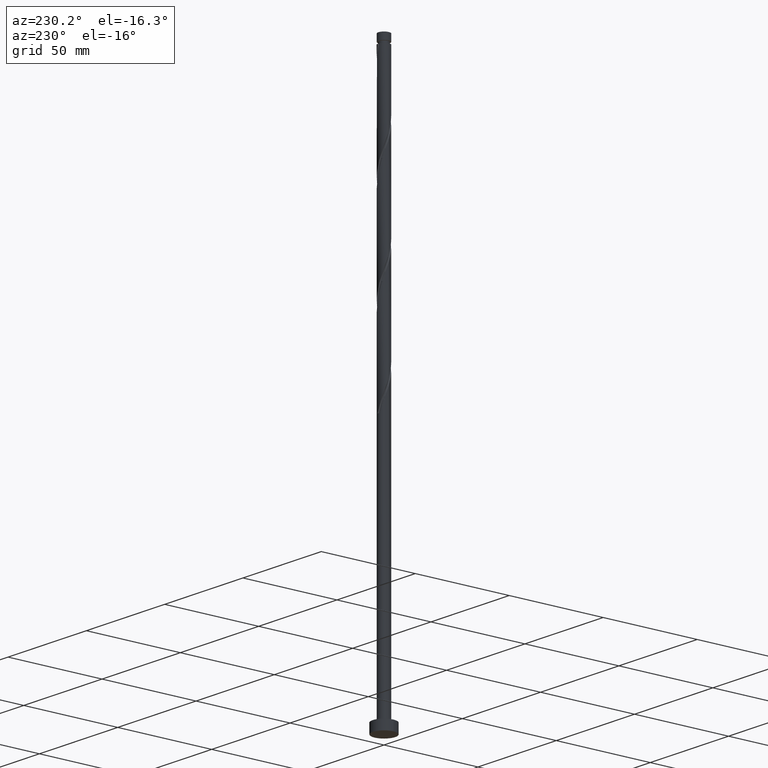
[diagram: clean part render]
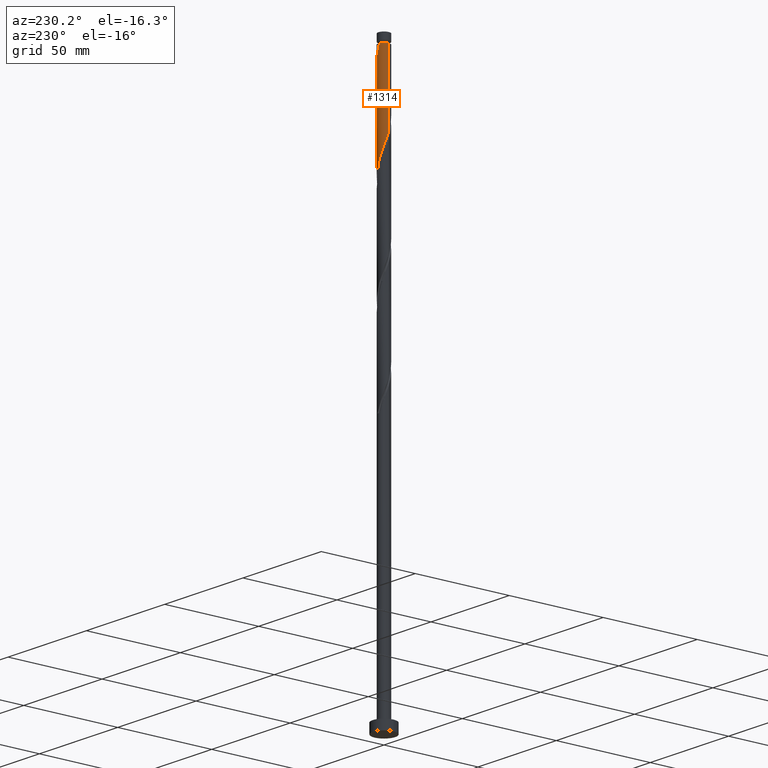
[diagram: same view with one face highlighted and labeled with its STEP entity id]
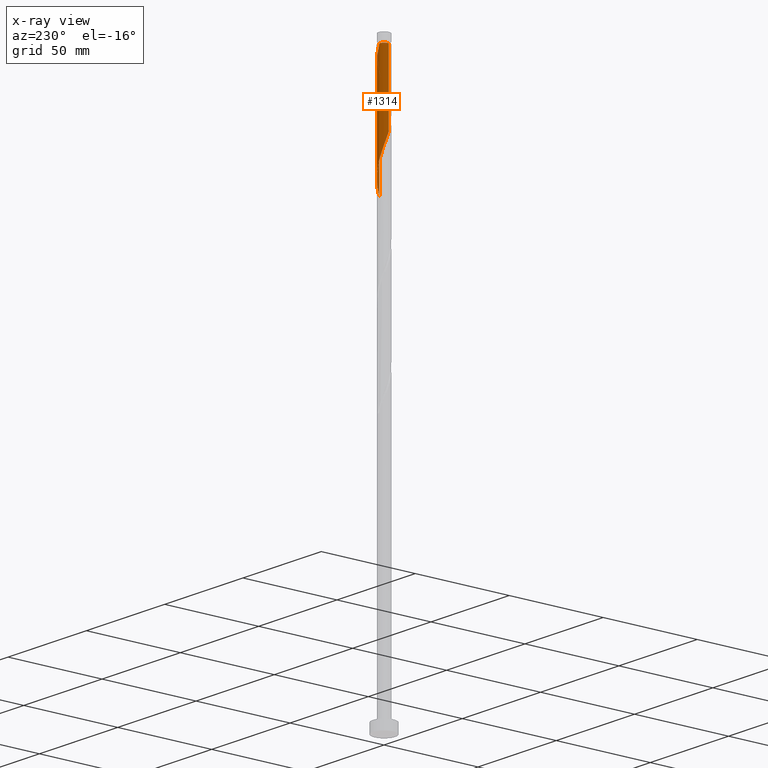
[diagram: x-ray of the same camera — body ghosted, the highlighted face saturated]
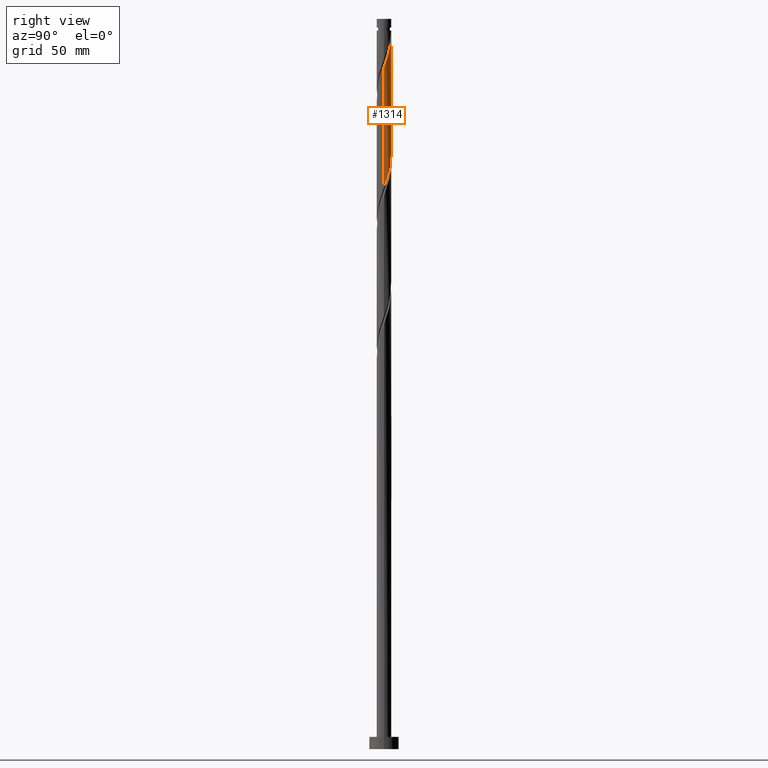
[diagram: same view with one face highlighted and labeled with its STEP entity id]
A machine part, auxiliary view. The second image highlights one B-rep face of the part: STEP entity #1314.
The next image is the same camera in x-ray: the body ghosted, the highlighted face saturated — about 0% of this face is hidden behind the body in this view.
A second angle (right view) of the same face is appended — the face is thin or edge-on in the first view.
In plain terms, the highlighted cylindrical surface (edge-blend (fillet) strip) has radius 3 mm, axis along (-0, -0, -1).
Its self-contained STEP definition (entity closure, byte-faithful):
#3 = CARTESIAN_POINT ( 'NONE',  ( 1.065385259292572329, 2.824749718427055800, 289.0194267578456788 ) ) ;
#78 = AXIS2_PLACEMENT_3D ( 'NONE', #1035, #1309, #1184 ) ;
#99 = CARTESIAN_POINT ( 'NONE',  ( -2.872735104178511190, 0.9282509055703006551, 253.3944267578456220 ) ) ;
#111 = CARTESIAN_POINT ( 'NONE',  ( -0.07218693100826180375, 2.999131382082419250, 243.0819267578455651 ) ) ;
#124 = CARTESIAN_POINT ( 'NONE',  ( -2.999999999999999556, -2.585890262604387055E-15, 256.0064438357516678 ) ) ;
#143 = EDGE_CURVE ( 'NONE', #190, #867, #1135, .T. ) ;
#155 = CARTESIAN_POINT ( 'NONE',  ( 1.667239772048622948, 2.516856822501210900, 287.1444267578456220 ) ) ;
#175 = CARTESIAN_POINT ( 'NONE',  ( 3.000000000000004885, 4.141902152223447771E-16, 278.9074096799394624 ) ) ;
#190 = VERTEX_POINT ( 'NONE', #614 ) ;
#202 = CARTESIAN_POINT ( 'NONE',  ( -3.000000000000000444, 0.000000000000000000, 298.5000000000000000 ) ) ;
#229 = CARTESIAN_POINT ( 'NONE',  ( -3.000000000000000888, 0.3015113445777614642, 255.1681727567880102 ) ) ;
#238 = CARTESIAN_POINT ( 'NONE',  ( 0.9282509055703014322, 2.872735104178511190, 240.2694267578456220 ) ) ;
#262 = CARTESIAN_POINT ( 'NONE',  ( -1.065385259292568998, 2.824749718427052692, 245.8944267578455936 ) ) ;
#275 = CARTESIAN_POINT ( 'NONE',  ( 1.236236160654866634, 2.733444741546700918, 239.3319267578455651 ) ) ;
#292 = EDGE_CURVE ( 'NONE', #431, #867, #1699, .T. ) ;
#331 = CARTESIAN_POINT ( 'NONE',  ( 0.07218693100826324704, 2.999131382082423247, 291.8319267578455083 ) ) ;
#340 = CARTESIAN_POINT ( 'NONE',  ( 3.000000000000005773, 0.3015113445777610202, 279.7456807589032337 ) ) ;
#358 = CARTESIAN_POINT ( 'NONE',  ( 2.516856822501208235, 1.667239772048618507, 234.6444267578456788 ) ) ;
#403 = EDGE_CURVE ( 'NONE', #993, #431, #1675, .T. ) ;
#411 = CARTESIAN_POINT ( 'NONE',  ( -2.594154378914891090, 1.544221415739432945, 251.5194267578456788 ) ) ;
#431 = VERTEX_POINT ( 'NONE', #1488 ) ;
#474 = CARTESIAN_POINT ( 'NONE',  ( 2.299807519258759481, 1.926365846447883667, 235.5819267578455936 ) ) ;
#506 = CARTESIAN_POINT ( 'NONE',  ( 2.999999999999999112, -2.388123763444167062E-15, 229.7564438357516678 ) ) ;
#527 = AXIS2_PLACEMENT_3D ( 'NONE', #1330, #1444, #734 ) ;
#541 = CARTESIAN_POINT ( 'NONE',  ( -0.4101078809741713904, 2.990997868343352906, 244.0194267578456220 ) ) ;
#561 = CARTESIAN_POINT ( 'NONE',  ( -2.733444741546700918, 1.236236160654866634, 252.4569267578455936 ) ) ;
#574 = ORIENTED_EDGE ( 'NONE', *, *, #1241, .T. ) ;
#610 = CARTESIAN_POINT ( 'NONE',  ( 2.733444741546706247, 1.236236160654867300, 282.4569267578455651 ) ) ;
#614 = CARTESIAN_POINT ( 'NONE',  ( 3.000000000000004441, 4.141902152223447771E-16, 278.9074096799394624 ) ) ;
#648 = CARTESIAN_POINT ( 'NONE',  ( 2.999131382082418806, 0.07218693100826127640, 229.9569267578456220 ) ) ;
#722 = CARTESIAN_POINT ( 'NONE',  ( 0.2657340189576477552, 3.007264895821487372, 242.1444267578455651 ) ) ;
#732 = CARTESIAN_POINT ( 'NONE',  ( 1.544221415739433390, 2.594154378914891090, 238.3944267578455936 ) ) ;
#734 = DIRECTION ( 'NONE',  ( -1.000000000000000000, 0.000000000000000000, 0.000000000000000000 ) ) ;
#741 = VECTOR ( 'NONE', #967, 1000.000000000000000 ) ;
#774 = CARTESIAN_POINT ( 'NONE',  ( 2.990997868343352906, 0.4101078809741707798, 230.8944267578456220 ) ) ;
#785 = ORIENTED_EDGE ( 'NONE', *, *, #143, .T. ) ;
#790 = ORIENTED_EDGE ( 'NONE', *, *, #403, .F. ) ;
#795 = CARTESIAN_POINT ( 'NONE',  ( -0.5969924622640133682, 2.940000000000002611, 293.7069267578457925 ) ) ;
#827 = CARTESIAN_POINT ( 'NONE',  ( -1.926365846447884556, 2.299807519258758592, 248.7069267578456504 ) ) ;
#863 = VECTOR ( 'NONE', #1805, 1000.000000000000000 ) ;
#867 = VERTEX_POINT ( 'NONE', #1342 ) ;
#925 = CARTESIAN_POINT ( 'NONE',  ( 2.907873793385202355, 0.7377465701333695280, 231.8319267578456220 ) ) ;
#967 = DIRECTION ( 'NONE',  ( -0.000000000000000000, -0.000000000000000000, -1.000000000000000000 ) ) ;
#975 = CARTESIAN_POINT ( 'NONE',  ( 2.082758216016309838, 2.185491920847149494, 236.5194267578455936 ) ) ;
#993 = VERTEX_POINT ( 'NONE', #1898 ) ;
#999 = CARTESIAN_POINT ( 'NONE',  ( -1.366312515670593752, 2.670803270464129131, 246.8319267578455936 ) ) ;
#1035 = CARTESIAN_POINT ( 'NONE',  ( 0.000000000000000000, 0.000000000000000000, 298.5000000000000000 ) ) ;
#1056 = CARTESIAN_POINT ( 'NONE',  ( 2.594154378914897308, 1.544221415739434500, 283.3944267578456220 ) ) ;
#1066 = CARTESIAN_POINT ( 'NONE',  ( 2.185491920847153935, 2.082758216016312502, 285.2694267578456788 ) ) ;
#1094 = CARTESIAN_POINT ( 'NONE',  ( -0.5969924622640133682, 2.940000000000002611, 293.7069267578457925 ) ) ;
#1125 = CARTESIAN_POINT ( 'NONE',  ( 1.813489815877871614, 2.389823149881020292, 237.4569267578455651 ) ) ;
#1135 = LINE ( 'NONE', #1161, #741 ) ;
#1147 = CARTESIAN_POINT ( 'NONE',  ( -1.667239772048618951, 2.516856822501208235, 247.7694267578456220 ) ) ;
#1161 = CARTESIAN_POINT ( 'NONE',  ( 3.000000000000000444, 3.673940397442059868E-16, 298.5000000000000000 ) ) ;
#1184 = DIRECTION ( 'NONE',  ( -1.000000000000000000, 0.000000000000000000, 0.000000000000000000 ) ) ;
#1241 = EDGE_CURVE ( 'NONE', #993, #1635, #1758, .T. ) ;
#1249 = ORIENTED_EDGE ( 'NONE', *, *, #1470, .F. ) ;
#1309 = DIRECTION ( 'NONE',  ( -0.000000000000000000, -0.000000000000000000, -1.000000000000000000 ) ) ;
#1314 = ADVANCED_FACE ( 'NONE', ( #1911 ), #1456, .T. ) ;
#1330 = CARTESIAN_POINT ( 'NONE',  ( 0.000000000000000000, 0.000000000000000000, 293.7069267578456220 ) ) ;
#1341 = CARTESIAN_POINT ( 'NONE',  ( 1.366312515670597305, 2.670803270464133572, 288.0819267578456220 ) ) ;
#1342 = CARTESIAN_POINT ( 'NONE',  ( 2.999999999999999556, -2.388123763444167062E-15, 229.7564438357516678 ) ) ;
#1357 = CARTESIAN_POINT ( 'NONE',  ( 0.4101078809741733888, 2.990997868343357791, 290.8944267578456788 ) ) ;
#1365 = CARTESIAN_POINT ( 'NONE',  ( 2.999999999999999112, 0.03609869149916482278, 229.8568065239767577 ) ) ;
#1370 = CARTESIAN_POINT ( 'NONE',  ( 1.926365846447887886, 2.299807519258761701, 286.2069267578456788 ) ) ;
#1434 = CARTESIAN_POINT ( 'NONE',  ( -2.939999999999999503, 0.5969924622639743994, 254.3319267578455367 ) ) ;
#1442 = CARTESIAN_POINT ( 'NONE',  ( -0.7377465701333703052, 2.907873793385202355, 244.9569267578455651 ) ) ;
#1444 = DIRECTION ( 'NONE',  ( -0.000000000000000000, -0.000000000000000000, -1.000000000000000000 ) ) ;
#1456 = CYLINDRICAL_SURFACE ( 'NONE', #78, 3.000000000000000444 ) ;
#1470 = EDGE_CURVE ( 'NONE', #190, #1635, #1830, .T. ) ;
#1488 = CARTESIAN_POINT ( 'NONE',  ( -2.999999999999999556, -2.585890262604387055E-15, 256.0064438357516678 ) ) ;
#1490 = CARTESIAN_POINT ( 'NONE',  ( 2.389823149881024733, 1.813489815877872946, 284.3319267578455083 ) ) ;
#1590 = CARTESIAN_POINT ( 'NONE',  ( 0.5969924622639746215, 2.939999999999999503, 241.2069267578456220 ) ) ;
#1635 = VERTEX_POINT ( 'NONE', #1094 ) ;
#1651 = CARTESIAN_POINT ( 'NONE',  ( 0.7377465701333725256, 2.907873793385206795, 289.9569267578455651 ) ) ;
#1655 = CARTESIAN_POINT ( 'NONE',  ( 2.824749718427052692, 1.065385259292568332, 232.7694267578455651 ) ) ;
#1659 = CARTESIAN_POINT ( 'NONE',  ( -0.2657340189576385403, 3.007264895821491812, 292.7694267578456220 ) ) ;
#1675 = LINE ( 'NONE', #202, #863 ) ;
#1699 =( BOUNDED_CURVE ( )  B_SPLINE_CURVE ( 2, ( #124, #229, #1434, #99, #561, #411, #1863, #1708, #827, #1147, #999, #262, #1442, #541, #111, #722, #1590, #238, #275, #732, #1125, #975, #474, #358, #1828, #1655, #925, #774, #648, #1365, #506 ),
 .UNSPECIFIED., .F., .T. ) 
 B_SPLINE_CURVE_WITH_KNOTS ( ( 3, 2, 2, 2, 2, 2, 2, 2, 2, 2, 2, 2, 2, 2, 2, 3 ),
 ( 0.4295303401299219170, 0.4375000000000000000, 0.4464285714285714524, 0.4553571428571428492, 0.4642857142857143016, 0.4732142857142856984, 0.4821428571428571508, 0.4910714285714285476, 0.5000000000000000000, 0.5089285714285713969, 0.5178571428571429047, 0.5267857142857143016, 0.5357142857142856984, 0.5446428571428570953, 0.5535714285714286031, 0.5545303401299221946 ),
 .UNSPECIFIED. ) 
 CURVE ( )  GEOMETRIC_REPRESENTATION_ITEM ( )  RATIONAL_B_SPLINE_CURVE ( ( 0.9079949616362106291, 0.9039886423360734558, 0.9090909090909403689, 0.9033747362666152414, 0.9090909090909403689, 0.9033747362666152414, 0.9090909090909403689, 0.9033747362666152414, 0.9090909090909403689, 0.9033747362666152414, 0.9090909090909403689, 0.9033747362666152414, 0.9090909090909403689, 0.9033747362666152414, 0.9090909090909403689, 0.9033747362666152414, 0.9090909090909403689, 0.9033747362666152414, 0.9090909090909403689, 0.9033747362666152414, 0.9090909090909403689, 0.9033747362666152414, 0.9090909090909403689, 0.9033747362666152414, 0.9090909090909403689, 0.9033747362666152414, 0.9090909090909403689, 0.9033747362666152414, 0.9090909090909403689, 0.9084770030214820435, 0.9079949616362102960 ) ) 
 REPRESENTATION_ITEM ( '' )  );
#1708 = CARTESIAN_POINT ( 'NONE',  ( -2.185491920847149938, 2.082758216016309394, 249.6444267578455651 ) ) ;
#1711 = ORIENTED_EDGE ( 'NONE', *, *, #292, .F. ) ;
#1758 = CIRCLE ( 'NONE', #527, 2.999999999999976907 ) ;
#1805 = DIRECTION ( 'NONE',  ( -0.000000000000000000, -0.000000000000000000, -1.000000000000000000 ) ) ;
#1809 = CARTESIAN_POINT ( 'NONE',  ( 2.940000000000004388, 0.5969924622639740663, 280.5819267578455083 ) ) ;
#1820 = CARTESIAN_POINT ( 'NONE',  ( 2.872735104178516963, 0.9282509055703013212, 281.5194267578456220 ) ) ;
#1828 = CARTESIAN_POINT ( 'NONE',  ( 2.670803270464129131, 1.366312515670593308, 233.7069267578455936 ) ) ;
#1830 =( BOUNDED_CURVE ( )  B_SPLINE_CURVE ( 2, ( #175, #340, #1809, #1820, #610, #1056, #1490, #1066, #1370, #155, #1341, #3, #1651, #1357, #331, #1659, #795 ),
 .UNSPECIFIED., .F., .T. ) 
 B_SPLINE_CURVE_WITH_KNOTS ( ( 3, 2, 2, 2, 2, 2, 2, 2, 3 ),
 ( 0.6795303401299219725, 0.6875000000000000000, 0.6964285714285713969, 0.7053571428571426827, 0.7142857142857141906, 0.7232142857142855874, 0.7321428571428569843, 0.7410714285714283811, 0.7499999999999997780 ),
 .UNSPECIFIED. ) 
 CURVE ( )  GEOMETRIC_REPRESENTATION_ITEM ( )  RATIONAL_B_SPLINE_CURVE ( ( 0.9079949616362169573, 0.9039886423360796730, 0.9090909090909468082, 0.9033747362666214586, 0.9090909090909468082, 0.9033747362666214586, 0.9090909090909468082, 0.9033747362666214586, 0.9090909090909468082, 0.9033747362666214586, 0.9090909090909468082, 0.9033747362666214586, 0.9090909090909468082, 0.9033747362666214586, 0.9090909090909468082, 0.9033747362666216807, 0.9090909090909465862 ) ) 
 REPRESENTATION_ITEM ( '' )  );
#1863 = CARTESIAN_POINT ( 'NONE',  ( -2.389823149881020292, 1.813489815877871392, 250.5819267578456220 ) ) ;
#1898 = CARTESIAN_POINT ( 'NONE',  ( -2.999999999999976907, 0.000000000000000000, 293.7069267578456220 ) ) ;
#1911 = FACE_OUTER_BOUND ( 'NONE', #1917, .T. ) ;
#1917 = EDGE_LOOP ( 'NONE', ( #1249, #785, #1711, #790, #574 ) ) ;